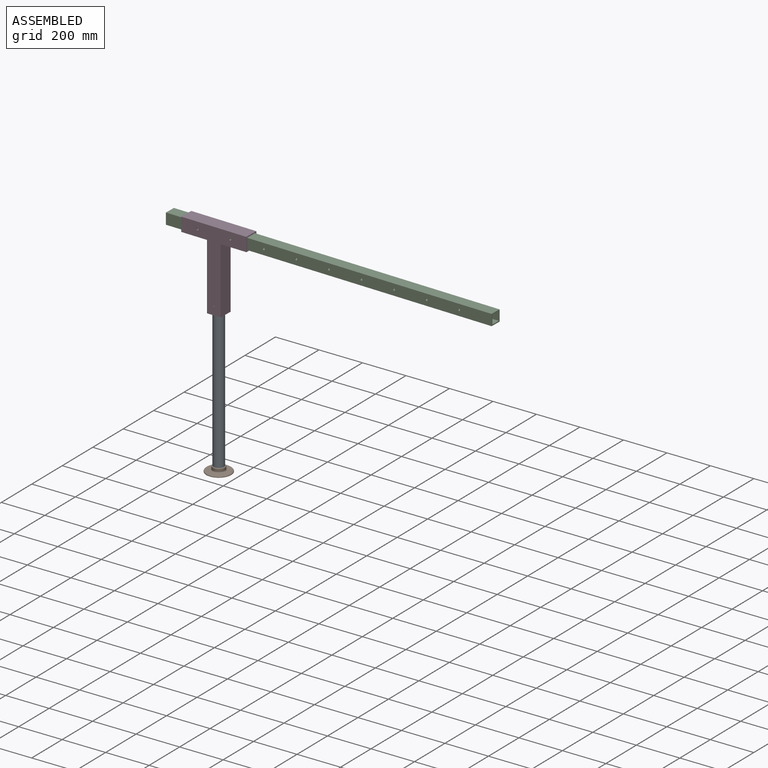
[diagram: assembled view]
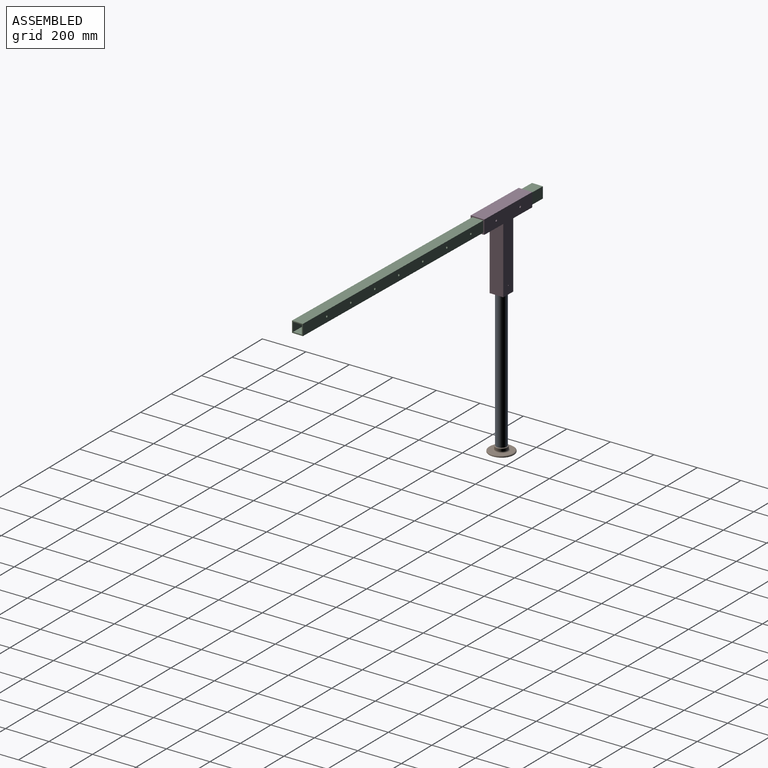
[diagram: assembled view, second angle]
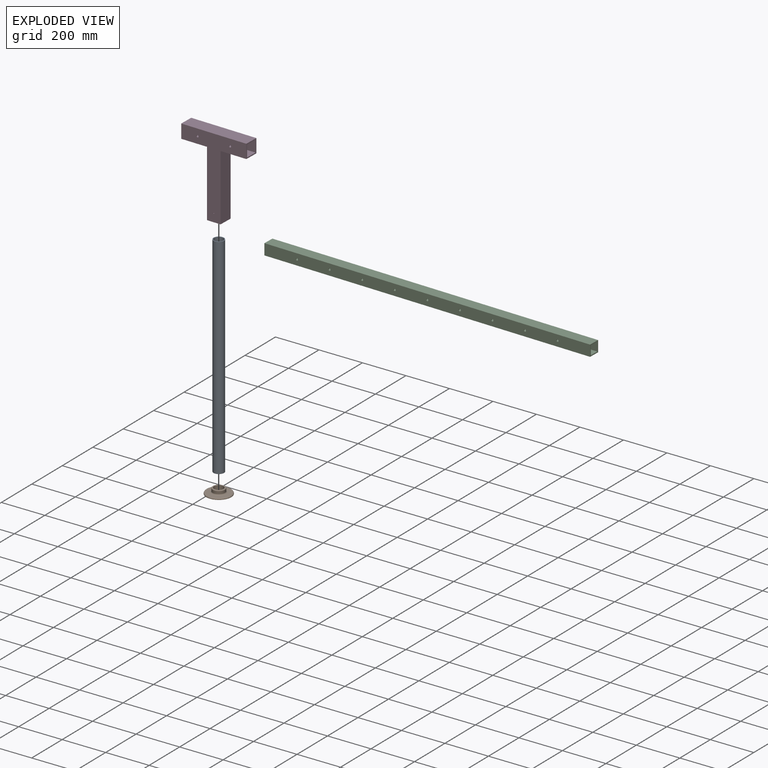
[diagram: exploded view]
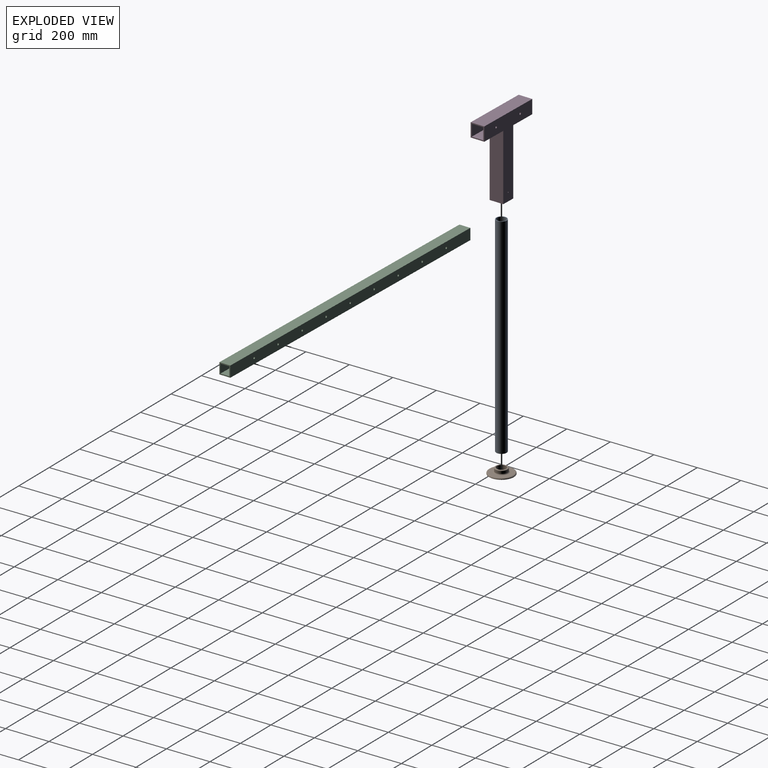
[diagram: exploded view, second angle]
ASSEMBLY  parts=4 mates=3
PART A: 4 faces, bbox 48.3x48.3x965.2 mm
  f0: cylinder r=20.96mm len=965.2mm, axis (0,0,-1), area 127082.2mm2, adj f2,f3
  f1: cylinder r=24.13mm len=965.2mm, axis (0,0,-1), area 146337.1mm2, adj f2,f3
  f2: plane 48.26x48.26mm, normal (0,0,1), area 449.7mm2, adj f0,f1
  f3: plane 48.26x48.26mm, normal (0,0,-1), area 449.7mm2, adj f0,f1
PART B: 9 faces, bbox 123.7x123.7x27.5 mm
  f0: cylinder r=21.59mm len=43.18mm, axis (0,0,1), area 3411.2mm2, adj f1,f5
  f1: plane 114.3x114.3mm, normal (0,0,-1), area 8796.4mm2, adj f0,f2
  f2: cylinder r=57.15mm len=114.3mm, axis (0,0,1), area 456mm2, adj f1,f6
  f3: plane 104.14x104.14mm, normal (0,0,1), area 5092.4mm2, adj f6,f8
  f4: cylinder r=27.94mm len=55.88mm, axis (0,0,1), area 1962mm2, adj f7,f8
  f5: plane 50.8x50.8mm, normal (0,0,1), area 562.4mm2, adj f0,f7
  f6: torus R=52.07mm, axis (0,0,-1), area 2772.8mm2, adj f2,f3
  f7: torus R=25.4mm, axis (0,0,-1), area 677.3mm2, adj f4,f5
  f8: torus R=33.02mm, axis (0,0,-1), area 1493.4mm2, adj f3,f4
PART C: 28 faces, bbox 1524x50.8x50.8 mm
  f0: plane 1524x50.8mm, normal (0,0,-1), area 77419.2mm2, adj f1,f7,f8,f9
  f1: plane 1524x50.8mm, normal (0,1,0), area 76777.9mm2, adj f0,f2,f8,f9,f19,f20,f21,f22
  f2: plane 1524x50.8mm, normal (0,0,1), area 77419.2mm2, adj f1,f7,f8,f9
  f3: plane 1524x41.28mm, normal (0,-1,0), area 62261.8mm2, adj f4,f6,f8,f9,f19,f20,f21,f22
  f4: plane 1524x41.28mm, normal (0,0,1), area 62903.1mm2, adj f3,f5,f8,f9
  f5: plane 1524x41.28mm, normal (0,1,0), area 62261.8mm2, adj f4,f6,f8,f9,f10,f11,f12,f13
  f6: plane 1524x41.28mm, normal (0,0,-1), area 62903.1mm2, adj f3,f5,f8,f9
  f7: plane 1524x50.8mm, normal (0,-1,0), area 76777.9mm2, adj f0,f2,f8,f9,f10,f11,f12,f13
  f8: plane 50.8x50.8mm, normal (1,0,0), area 877mm2, adj f0,f1,f2,f3,f4,f5,f6,f7
  f9: plane 50.8x50.8mm, normal (-1,0,0), area 877mm2, adj f0,f1,f2,f3,f4,f5,f6,f7
  f10: cylinder r=4.76mm len=9.53mm, axis (0,-1,0), area 142.5mm2, adj f5,f7
  f11: cylinder r=4.76mm len=9.53mm, axis (0,-1,0), area 142.5mm2, adj f5,f7
  f12: cylinder r=4.76mm len=9.53mm, axis (0,-1,0), area 142.5mm2, adj f5,f7
  f13: cylinder r=4.76mm len=9.53mm, axis (0,-1,0), area 142.5mm2, adj f5,f7
  f14: cylinder r=4.76mm len=9.53mm, axis (0,-1,0), area 142.5mm2, adj f5,f7
  f15: cylinder r=4.76mm len=9.53mm, axis (0,-1,0), area 142.5mm2, adj f5,f7
  f16: cylinder r=4.76mm len=9.53mm, axis (0,-1,0), area 142.5mm2, adj f5,f7
  f17: cylinder r=4.76mm len=9.53mm, axis (0,-1,0), area 142.5mm2, adj f5,f7
  f18: cylinder r=4.76mm len=9.53mm, axis (0,-1,0), area 142.5mm2, adj f5,f7
  f19: cylinder r=4.76mm len=9.53mm, axis (0,-1,0), area 142.5mm2, adj f1,f3
  f20: cylinder r=4.76mm len=9.53mm, axis (0,-1,0), area 142.5mm2, adj f1,f3
  f21: cylinder r=4.76mm len=9.53mm, axis (0,-1,0), area 142.5mm2, adj f1,f3
  f22: cylinder r=4.76mm len=9.53mm, axis (0,-1,0), area 142.5mm2, adj f1,f3
  f23: cylinder r=4.76mm len=9.53mm, axis (0,-1,0), area 142.5mm2, adj f1,f3
  f24: cylinder r=4.76mm len=9.53mm, axis (0,-1,0), area 142.5mm2, adj f1,f3
  f25: cylinder r=4.76mm len=9.53mm, axis (0,-1,0), area 142.5mm2, adj f1,f3
  f26: cylinder r=4.76mm len=9.53mm, axis (0,-1,0), area 142.5mm2, adj f1,f3
  f27: cylinder r=4.76mm len=9.53mm, axis (0,-1,0), area 142.5mm2, adj f1,f3
PART D: 25 faces, bbox 304.8x63.5x368.3 mm
  f0: plane 120.65x63.5mm, normal (0,0,-1), area 7661.3mm2, adj f4,f6,f9,f11
  f1: plane 304.8x53.98mm, normal (0,0,-1), area 16451.6mm2, adj f2,f8,f9,f10
  f2: plane 304.8x53.98mm, normal (0,-1,0), area 16309.1mm2, adj f1,f3,f9,f10,f21,f22
  f3: plane 304.8x53.98mm, normal (0,0,1), area 16451.6mm2, adj f2,f8,f9,f10
  f4: plane 368.3x304.8mm, normal (0,-1,0), area 38554.1mm2, adj f0,f5,f7,f9,f10,f11,f16,f17
  f5: plane 120.65x63.5mm, normal (0,0,-1), area 7661.3mm2, adj f4,f6,f10,f16
  f6: plane 368.3x304.8mm, normal (0,1,0), area 38554.1mm2, adj f0,f5,f7,f9,f10,f11,f16,f17
  f7: plane 304.8x63.5mm, normal (0,0,1), area 19354.8mm2, adj f4,f6,f9,f10
  f8: plane 304.8x53.98mm, normal (0,1,0), area 16309.1mm2, adj f1,f3,f9,f10,f19,f20
  f9: plane 63.5x63.5mm, normal (1,0,0), area 1118.9mm2, adj f0,f1,f2,f3,f4,f6,f7,f8
  f10: plane 63.5x63.5mm, normal (-1,0,0), area 1118.9mm2, adj f1,f2,f3,f4,f5,f6,f7,f8
  f11: plane 304.8x63.5mm, normal (1,0,0), area 19354.8mm2, adj f0,f4,f6,f17
  f12: plane 304.8x53.98mm, normal (-1,0,0), area 16451.6mm2, adj f13,f15,f17,f18
  f13: plane 304.8x50.84mm, normal (0,-1,0), area 15483.1mm2, adj f12,f14,f17,f18,f24
  f14: plane 304.8x53.98mm, normal (1,0,0), area 16451.6mm2, adj f13,f15,f17,f18
  f15: plane 304.8x50.84mm, normal (0,1,0), area 15483.1mm2, adj f12,f14,f17,f18,f23
  f16: plane 304.8x63.5mm, normal (-1,0,0), area 19354.8mm2, adj f4,f5,f6,f17
  f17: plane 63.5x63.5mm, normal (0,0,-1), area 1288.2mm2, adj f4,f6,f11,f12,f13,f14,f15,f16
  f18: plane 53.98x50.84mm, normal (0,0,-1), area 2744.1mm2, adj f12,f13,f14,f15
  f19: cylinder r=4.76mm len=9.53mm, axis (0,-1,0), area 142.5mm2, adj f4,f8
  f20: cylinder r=4.76mm len=9.53mm, axis (0,-1,0), area 142.5mm2, adj f4,f8
  f21: cylinder r=4.76mm len=9.53mm, axis (0,-1,0), area 142.5mm2, adj f2,f6
  f22: cylinder r=4.76mm len=9.53mm, axis (0,-1,0), area 142.5mm2, adj f2,f6
  f23: cylinder r=2.03mm len=4.76mm, axis (0,-1,0), area 60.8mm2, adj f4,f15
  f24: cylinder r=2.03mm len=4.76mm, axis (0,-1,0), area 60.8mm2, adj f6,f13
PLACE A at identity
PLACE B at identity fixed
PLACE C rot(axis=(1,-0.01,0),180deg) t=(533.24,-12.98,996.95)mm
PLACE D rot(axis=(0,0,-1),1.4deg) t=(0,0,996.95)mm
MATE slider C.f9 <-> D.f9  axis (-1,0.02,0) through (-228.53,5.56,996.95)mm
MATE fastened A.f0 <-> B.f0  axis (0,0,-1) through (0,0,0)mm
MATE revolute D.f18 <-> A.f1  axis (0,0,-1) through (0,0,965.2)mm
